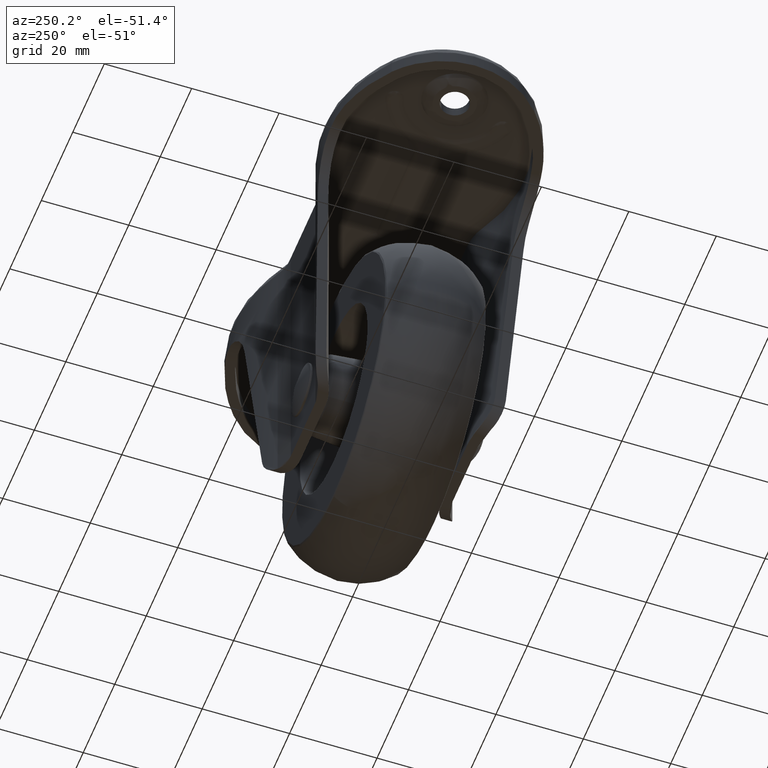
[diagram: clean part render]
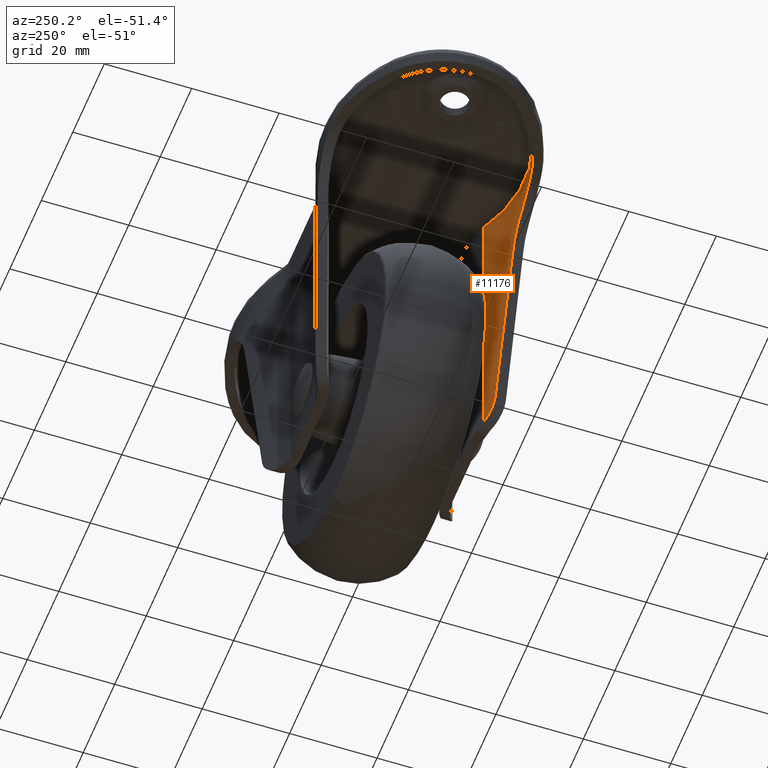
[diagram: same view with one face highlighted and labeled with its STEP entity id]
A machine part, auxiliary view. The second image highlights one B-rep face of the part: STEP entity #11176.
In plain terms, the highlighted face is a freeform B-spline surface patch.
Its self-contained STEP definition (entity closure, byte-faithful):
#10277=CARTESIAN_POINT('',(-23.320433999999999,-21.177710618863799,-18.912403000000001));
#10278=VERTEX_POINT('',#10277);
#10284=CARTESIAN_POINT('',(-16.967850549932550,-19.281709410887700,-64.113384807680504));
#10285=VERTEX_POINT('',#10284);
#10286=CARTESIAN_POINT('',(-16.967850549932550,-19.281709410887700,-64.113384807680504));
#10287=CARTESIAN_POINT('',(-20.042661071770052,-20.569725225716223,-42.234971965885151));
#10288=CARTESIAN_POINT('',(-23.320434000000009,-21.177710618863841,-18.912402999999991));
#10296=(BOUNDED_CURVE()B_SPLINE_CURVE(2,(#10286,#10287,#10288),.UNSPECIFIED.,.F.,.U.)CURVE()GEOMETRIC_REPRESENTATION_ITEM()QUASI_UNIFORM_CURVE()RATIONAL_B_SPLINE_CURVE((1.0,0.994319154986651,1.0))REPRESENTATION_ITEM(''));
#10297=EDGE_CURVE('',#10285,#10278,#10296,.T.);
#10371=CARTESIAN_POINT('',(-13.833429033684800,-17.757249453637652,-69.409189352228893));
#10372=VERTEX_POINT('',#10371);
#10373=CARTESIAN_POINT('',(-16.967850549932550,-19.281709410887700,-64.113384807680504));
#10374=CARTESIAN_POINT('',(-16.929710142672310,-19.265732471915069,-64.384767906699423));
#10375=CARTESIAN_POINT('',(-16.878077773272430,-19.244024478622759,-64.651255888192267));
#10376=CARTESIAN_POINT('',(-16.749129757110769,-19.189192352151579,-65.174846206384615));
#10377=CARTESIAN_POINT('',(-16.671809173348709,-19.156066600851830,-65.431946815561702));
#10378=CARTESIAN_POINT('',(-16.491966209230320,-19.077866596953950,-65.936839086622413));
#10379=CARTESIAN_POINT('',(-16.389442854380359,-19.032793679695221,-66.184630627565227));
#10380=CARTESIAN_POINT('',(-16.245391764875560,-18.968298260181410,-66.488416021394841));
#10381=CARTESIAN_POINT('',(-16.215751235379692,-18.954974620144512,-66.548936667159239));
#10382=CARTESIAN_POINT('',(-16.155228735455282,-18.927649881424550,-66.668676412405802));
#10383=CARTESIAN_POINT('',(-16.062479029700480,-18.885600343449951,-66.846563357501495));
#10384=CARTESIAN_POINT('',(-15.963953162694100,-18.840347972105590,-67.019361787497175));
#10385=CARTESIAN_POINT('',(-15.623141883086319,-18.682261276981979,-67.584315099397855));
#10386=CARTESIAN_POINT('',(-15.311135144265529,-18.532833553062289,-68.001226732159139));
#10387=CARTESIAN_POINT('',(-14.875732579139999,-18.312975206919791,-68.479738318185312));
#10388=CARTESIAN_POINT('',(-14.786229880604679,-18.267263730709072,-68.573410656972854));
#10389=CARTESIAN_POINT('',(-14.604221148468620,-18.173142692717970,-68.754948315953527));
#10390=CARTESIAN_POINT('',(-14.511562201695460,-18.124657435362838,-68.842994794225916));
#10391=CARTESIAN_POINT('',(-14.228845239497669,-17.974829508592361,-69.099160299240793));
#10392=CARTESIAN_POINT('',(-14.034055949587630,-17.869121071310580,-69.259319212082204));
#10393=CARTESIAN_POINT('',(-13.833429033684761,-17.757249453637652,-69.409189352228893));
#10394=B_SPLINE_CURVE_WITH_KNOTS('',3,(#10373,#10374,#10375,#10376,#10377,#10378,#10379,#10380,#10381,#10382,#10383,#10384,#10385,#10386,#10387,#10388,#10389,#10390,#10391,#10392,#10393),.UNSPECIFIED.,.F.,.U.,(4,2,2,2,2,1,2,2,2,2,4),(0.0,0.125000000000003,0.250000000000006,0.375000000000009,0.406250000000010,0.437500000000011,0.500000000000007,0.750000000000000,0.812500000000001,0.875000000000002,1.0),.UNSPECIFIED.);
#10395=EDGE_CURVE('',#10285,#10372,#10394,.T.);
#10489=CARTESIAN_POINT('',(-38.174455000000002,-20.317931081756701,-6.0));
#10490=VERTEX_POINT('',#10489);
#10496=CARTESIAN_POINT('',(-23.320433999999999,-21.177710618863799,-18.912403000000001));
#10497=CARTESIAN_POINT('',(-23.383659509392711,-21.189438150566541,-18.462530494516439));
#10498=CARTESIAN_POINT('',(-23.466765120854799,-21.204667895668479,-18.019162556777921));
#10499=CARTESIAN_POINT('',(-23.671352249930479,-21.240901681195002,-17.144932676988539));
#10500=CARTESIAN_POINT('',(-23.792837214218100,-21.261906567981470,-16.714071874826558));
#10501=CARTESIAN_POINT('',(-24.073802383084530,-21.308235791647849,-15.864661081530681));
#10502=CARTESIAN_POINT('',(-24.233282040227031,-21.333562009249789,-15.446111011913979));
#10503=CARTESIAN_POINT('',(-24.501422026814769,-21.373501236322529,-14.827588322967950));
#10504=CARTESIAN_POINT('',(-24.595629565886920,-21.387137053128079,-14.622966755734460));
#10505=CARTESIAN_POINT('',(-24.793865052094851,-21.414808000692229,-14.216869025692940));
#10506=CARTESIAN_POINT('',(-24.898115830473351,-21.428869827785711,-14.015025972290060));
#10507=CARTESIAN_POINT('',(-25.222699515164692,-21.470841431439819,-13.420012829206231));
#10508=CARTESIAN_POINT('',(-25.455547251375119,-21.498647486625959,-13.035707530003460));
#10509=CARTESIAN_POINT('',(-25.953352758530830,-21.551624414615411,-12.291083369946010));
#10510=CARTESIAN_POINT('',(-26.218312272038268,-21.576798537753401,-11.930766028481850));
#10511=CARTESIAN_POINT('',(-26.780367436981091,-21.622077034175131,-11.233981242707500));
#10512=CARTESIAN_POINT('',(-27.077461411537410,-21.642185803581111,-10.897512818939800));
#10513=CARTESIAN_POINT('',(-27.547840558363500,-21.666520469627081,-10.411046133103190));
#10514=CARTESIAN_POINT('',(-27.708792233044850,-21.673659169599780,-10.251907304349830));
#10515=CARTESIAN_POINT('',(-28.039029425935791,-21.685608307905710,-9.939948364563332));
#10516=CARTESIAN_POINT('',(-28.207031458148361,-21.690371525707821,-9.788338492285719));
#10517=CARTESIAN_POINT('',(-28.719501017765179,-21.700611534471630,-9.346357286294401));
#10518=CARTESIAN_POINT('',(-29.072415198074030,-21.702042281187019,-9.068809048698348));
#10519=CARTESIAN_POINT('',(-29.800216030308601,-21.691844407207061,-8.547186352042006));
#10520=CARTESIAN_POINT('',(-30.175103719940950,-21.680219650050500,-8.303113267442443));
#10521=CARTESIAN_POINT('',(-30.946819432641330,-21.641489470028819,-7.848504354765177));
#10522=CARTESIAN_POINT('',(-31.343646406497630,-21.614388918023138,-7.637966732586988));
#10523=CARTESIAN_POINT('',(-31.955711692261261,-21.560094777832461,-7.347959806586269));
#10524=CARTESIAN_POINT('',(-32.162963562465052,-21.539663829844201,-7.255447222517184));
#10525=CARTESIAN_POINT('',(-32.578469677184891,-21.494424899707759,-7.081102463793886));
#10526=CARTESIAN_POINT('',(-32.787208452002623,-21.469582155835042,-6.999018349753976));
#10527=CARTESIAN_POINT('',(-33.416249191700587,-21.388175255999371,-6.767673147246465));
#10528=CARTESIAN_POINT('',(-33.839368915347791,-21.324735571483249,-6.633292490114040));
#10529=CARTESIAN_POINT('',(-34.692596476227230,-21.178350262394019,-6.403016844005411));
#10530=CARTESIAN_POINT('',(-35.122705315237717,-21.095406705966472,-6.307124237165087));
#10531=CARTESIAN_POINT('',(-35.772865244670292,-20.955394357897362,-6.191866754137026));
#10532=CARTESIAN_POINT('',(-35.990419481275708,-20.906122907648861,-6.158217409861609));
#10533=CARTESIAN_POINT('',(-36.427172786091241,-20.802199937009700,-6.100485697012055));
#10534=CARTESIAN_POINT('',(-36.646757938603159,-20.747442647275928,-6.076379095556870));
#10535=CARTESIAN_POINT('',(-37.303692150034621,-20.575956335534212,-6.018843539203966));
#10536=CARTESIAN_POINT('',(-37.739954806401101,-20.451879795278369,-5.999999999999997));
#10537=CARTESIAN_POINT('',(-38.174455000000009,-20.317931081756701,-6.0));
#10538=B_SPLINE_CURVE_WITH_KNOTS('',3,(#10496,#10497,#10498,#10499,#10500,#10501,#10502,#10503,#10504,#10505,#10506,#10507,#10508,#10509,#10510,#10511,#10512,#10513,#10514,#10515,#10516,#10517,#10518,#10519,#10520,#10521,#10522,#10523,#10524,#10525,#10526,#10527,#10528,#10529,#10530,#10531,#10532,#10533,#10534,#10535,#10536,#10537),.UNSPECIFIED.,.F.,.U.,(4,2,2,2,2,2,2,2,2,2,2,2,2,2,2,2,2,2,2,2,4),(0.0,0.062500000000001,0.125000000000001,0.187500000000002,0.218750000000002,0.250000000000002,0.312500000000003,0.375000000000003,0.437500000000004,0.468750000000004,0.500000000000005,0.562500000000005,0.625000000000006,0.687500000000006,0.718750000000005,0.750000000000005,0.812500000000003,0.875000000000002,0.906250000000001,0.937500000000001,1.0),.UNSPECIFIED.);
#10539=EDGE_CURVE('',#10278,#10490,#10538,.T.);
#10581=CARTESIAN_POINT('',(-48.855124392041198,-14.549623222809840,-6.0));
#10582=VERTEX_POINT('',#10581);
#10598=CARTESIAN_POINT('',(-38.174454999999988,-20.317931081756690,-6.0));
#10599=CARTESIAN_POINT('',(-44.087884040692870,-18.494925651214245,-6.0));
#10600=CARTESIAN_POINT('',(-48.855124392041191,-14.549623222809821,-6.0));
#10608=(BOUNDED_CURVE()B_SPLINE_CURVE(2,(#10598,#10599,#10600),.UNSPECIFIED.,.F.,.U.)CURVE()GEOMETRIC_REPRESENTATION_ITEM()QUASI_UNIFORM_CURVE()RATIONAL_B_SPLINE_CURVE((1.0,0.980824273093681,1.0))REPRESENTATION_ITEM(''));
#10609=EDGE_CURVE('',#10490,#10582,#10608,.T.);
#10701=CARTESIAN_POINT('',(-48.855124444938703,-14.549623286727700,-2.299999999999970));
#10702=VERTEX_POINT('',#10701);
#10703=CARTESIAN_POINT('',(-48.855124444938703,-14.549623286727700,-2.299999999999970));
#10704=CARTESIAN_POINT('',(-48.855124392041198,-14.549623222809840,-6.0));
#10705=QUASI_UNIFORM_CURVE('',1,(#10703,#10704),.UNSPECIFIED.,.F.,.U.);
#10706=EDGE_CURVE('',#10702,#10582,#10705,.T.);
#11117=CARTESIAN_POINT('',(-13.833429033684800,-17.757249453637652,-2.299999999999970));
#11118=VERTEX_POINT('',#11117);
#11119=CARTESIAN_POINT('',(-13.833429033684800,-17.757249453637652,-2.299999999999970));
#11120=CARTESIAN_POINT('',(-13.833429033684800,-17.757249453637652,-69.409189352228893));
#11121=QUASI_UNIFORM_CURVE('',1,(#11119,#11120),.UNSPECIFIED.,.F.,.U.);
#11122=EDGE_CURVE('',#11118,#10372,#11121,.T.);
#11141=CARTESIAN_POINT('',(-49.576421502330987,-13.933945096974441,-0.622270266194245));
#11142=CARTESIAN_POINT('',(-49.576421502330987,-13.933945096974441,-71.128862329379771));
#11143=CARTESIAN_POINT('',(-32.048222595018551,-29.362961499630423,-0.622270266194244));
#11144=CARTESIAN_POINT('',(-32.048222595018551,-29.362961499630423,-71.128862329379771));
#11145=CARTESIAN_POINT('',(-12.325904117153669,-16.860063517746124,-0.622270266194245));
#11146=CARTESIAN_POINT('',(-12.325904117153669,-16.860063517746124,-71.128862329379785));
#11154=(BOUNDED_SURFACE()B_SPLINE_SURFACE(1,2,((#11141,#11143,#11145),(#11142,#11144,#11146)),.UNSPECIFIED.,.F.,.F.,.U.)B_SPLINE_SURFACE_WITH_KNOTS((2,2),(3,3),(0.0,70.506592063185536),(0.0,41.515385754949463),.UNSPECIFIED.)GEOMETRIC_REPRESENTATION_ITEM()RATIONAL_B_SPLINE_SURFACE(((1.0,0.797107292666058,0.992628484180640),(1.0,0.797107292666058,0.992628484180640)))REPRESENTATION_ITEM('')SURFACE());
#11155=ORIENTED_EDGE('',*,*,#10395,.F.);
#11156=ORIENTED_EDGE('',*,*,#10297,.T.);
#11157=ORIENTED_EDGE('',*,*,#10539,.T.);
#11158=ORIENTED_EDGE('',*,*,#10609,.T.);
#11159=ORIENTED_EDGE('',*,*,#10706,.F.);
#11160=CARTESIAN_POINT('',(-13.833429033684800,-17.757249453637659,-2.299999999999970));
#11161=CARTESIAN_POINT('',(-32.441509174824461,-28.133305018309290,-2.299999999999970));
#11162=CARTESIAN_POINT('',(-48.855124444938703,-14.549623286727700,-2.299999999999970));
#11170=(BOUNDED_CURVE()B_SPLINE_CURVE(2,(#11160,#11161,#11162),.UNSPECIFIED.,.F.,.U.)CURVE()GEOMETRIC_REPRESENTATION_ITEM()QUASI_UNIFORM_CURVE()RATIONAL_B_SPLINE_CURVE((1.0,0.825334445557847,1.0))REPRESENTATION_ITEM(''));
#11171=EDGE_CURVE('',#11118,#10702,#11170,.T.);
#11172=ORIENTED_EDGE('',*,*,#11171,.F.);
#11173=ORIENTED_EDGE('',*,*,#11122,.T.);
#11174=EDGE_LOOP('',(#11155,#11156,#11157,#11158,#11159,#11172,#11173));
#11175=FACE_OUTER_BOUND('',#11174,.T.);
#11176=ADVANCED_FACE('',(#11175),#11154,.F.);